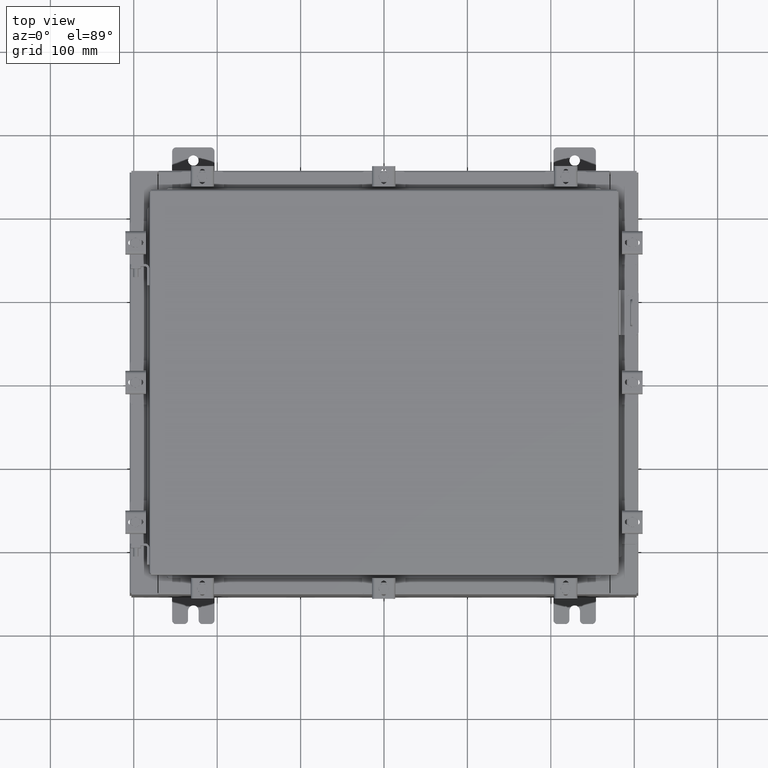
[diagram: clean part render]
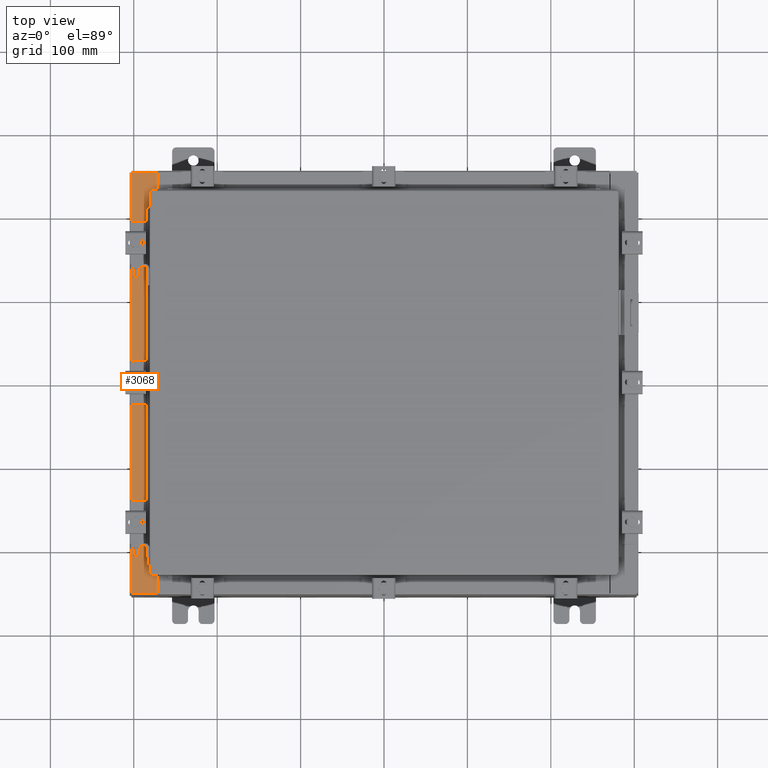
[diagram: same view with one face highlighted and labeled with its STEP entity id]
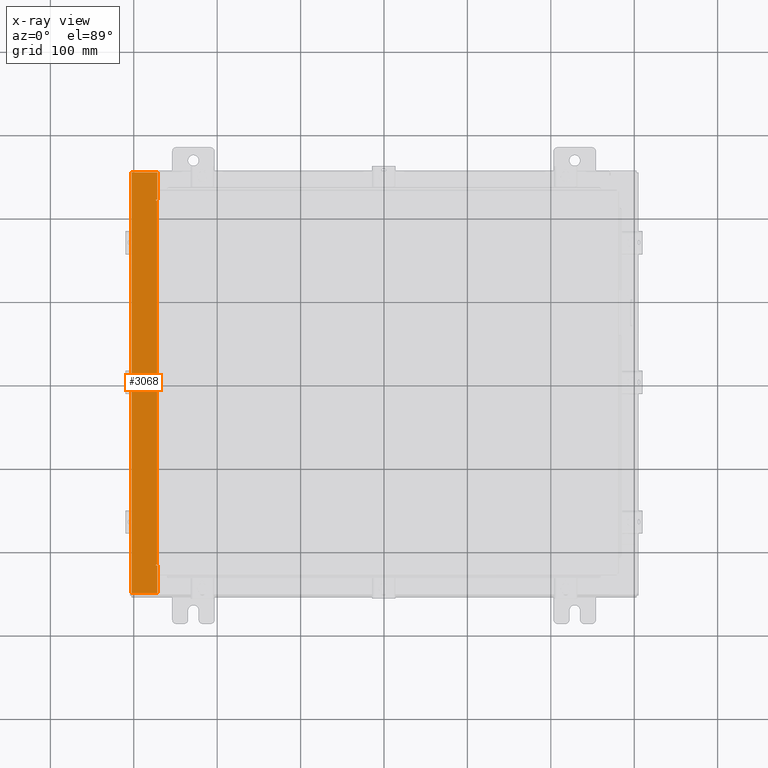
[diagram: x-ray of the same camera — body ghosted, the highlighted face saturated]
A machine part, top view. The second image highlights one B-rep face of the part: STEP entity #3068.
The next image is the same camera in x-ray: the body ghosted, the highlighted face saturated — about 0% of this face is hidden behind the body in this view.
In plain terms, the highlighted planar face has unit normal (0, 0, -1).
Its self-contained STEP definition (entity closure, byte-faithful):
#67 = VECTOR ( 'NONE', #7613, 39.37007874015748100 ) ;
#128 = FACE_OUTER_BOUND ( 'NONE', #518, .T. ) ;
#518 = EDGE_LOOP ( 'NONE', ( #7982, #21383, #4977, #5423, #11428, #2282, #2901, #12630, #13940, #11494, #6159, #19715 ) ) ;
#621 = VERTEX_POINT ( 'NONE', #16819 ) ;
#662 = VERTEX_POINT ( 'NONE', #20959 ) ;
#1033 = CARTESIAN_POINT ( 'NONE',  ( -5.679009539018275100E-014, 9.925299999999998200, 7.925300000000085300 ) ) ;
#1174 = LINE ( 'NONE', #15182, #10980 ) ;
#1199 = CARTESIAN_POINT ( 'NONE',  ( -11.91230000000003200, 9.925299999999996500, 7.925300000000000000 ) ) ;
#1524 = CARTESIAN_POINT ( 'NONE',  ( -10.75005000000003400, 8.593749999999996400, 7.925300000000008900 ) ) ;
#1571 = LINE ( 'NONE', #14172, #6718 ) ;
#1590 = EDGE_CURVE ( 'NONE', #16068, #11251, #6191, .T. ) ;
#1714 = EDGE_CURVE ( 'NONE', #7813, #11750, #4013, .T. ) ;
#2235 = LINE ( 'NONE', #21565, #67 ) ;
#2282 = ORIENTED_EDGE ( 'NONE', *, *, #7386, .T. ) ;
#2439 = CARTESIAN_POINT ( 'NONE',  ( -10.71270000000003500, 8.593749999999996400, 7.925300000000006200 ) ) ;
#2735 = VERTEX_POINT ( 'NONE', #20375 ) ;
#2901 = ORIENTED_EDGE ( 'NONE', *, *, #12534, .F. ) ;
#3068 = ADVANCED_FACE ( 'NONE', ( #128 ), #21600, .F. ) ;
#3080 = AXIS2_PLACEMENT_3D ( 'NONE', #18194, #21680, #11274 ) ;
#3231 = CARTESIAN_POINT ( 'NONE',  ( -11.91230000000003200, -9.925299999999998200, 7.925300000000000000 ) ) ;
#3723 = DIRECTION ( 'NONE',  ( -2.201926788038054900E-016, 1.000000000000000000, -1.570582056944474900E-030 ) ) ;
#4013 = LINE ( 'NONE', #18146, #21467 ) ;
#4386 = LINE ( 'NONE', #7282, #13687 ) ;
#4450 = LINE ( 'NONE', #1033, #13205 ) ;
#4648 = EDGE_CURVE ( 'NONE', #20850, #11251, #4450, .T. ) ;
#4729 = DIRECTION ( 'NONE',  ( 1.000000000000000000, -5.349571789159770400E-015, 7.132762385546359500E-015 ) ) ;
#4977 = ORIENTED_EDGE ( 'NONE', *, *, #4648, .T. ) ;
#5370 = CARTESIAN_POINT ( 'NONE',  ( -10.69970000000003200, 9.925299999999998200, 7.925300000000008900 ) ) ;
#5423 = ORIENTED_EDGE ( 'NONE', *, *, #1590, .F. ) ;
#6159 = ORIENTED_EDGE ( 'NONE', *, *, #1714, .F. ) ;
#6191 = LINE ( 'NONE', #12674, #10323 ) ;
#6713 = CIRCLE ( 'NONE', #22381, 0.01867499999999949400 ) ;
#6718 = VECTOR ( 'NONE', #3723, 39.37007874015748100 ) ;
#7088 = EDGE_CURVE ( 'NONE', #10466, #662, #19832, .T. ) ;
#7282 = CARTESIAN_POINT ( 'NONE',  ( -10.69970000000003000, -2.355995605397071600E-015, 7.925300000000008900 ) ) ;
#7386 = EDGE_CURVE ( 'NONE', #21941, #8316, #1571, .T. ) ;
#7516 = VECTOR ( 'NONE', #15832, 39.37007874015748100 ) ;
#7613 = DIRECTION ( 'NONE',  ( -0.0000000000000000000, -1.000000000000000000, -0.0000000000000000000 ) ) ;
#7813 = VERTEX_POINT ( 'NONE', #1524 ) ;
#7982 = ORIENTED_EDGE ( 'NONE', *, *, #19405, .F. ) ;
#8183 = CARTESIAN_POINT ( 'NONE',  ( -10.75005000000003400, 8.612424999999996400, 7.925300000000006200 ) ) ;
#8316 = VERTEX_POINT ( 'NONE', #12885 ) ;
#8470 = AXIS2_PLACEMENT_3D ( 'NONE', #8183, #20385, #9957 ) ;
#8547 = DIRECTION ( 'NONE',  ( -7.132762385546359500E-015, -0.0000000000000000000, 1.000000000000000000 ) ) ;
#8927 = CARTESIAN_POINT ( 'NONE',  ( -10.69970000000003200, 8.631099999999996400, 7.925300000000007100 ) ) ;
#9372 = CARTESIAN_POINT ( 'NONE',  ( -10.71270000000003500, -8.593750000000010700, 7.925300000000006200 ) ) ;
#9957 = DIRECTION ( 'NONE',  ( 1.000000000000000000, 0.0000000000000000000, 0.0000000000000000000 ) ) ;
#10323 = VECTOR ( 'NONE', #21336, 39.37007874015748100 ) ;
#10466 = VERTEX_POINT ( 'NONE', #9372 ) ;
#10588 = VECTOR ( 'NONE', #22027, 39.37007874015748100 ) ;
#10980 = VECTOR ( 'NONE', #4729, 39.37007874015748100 ) ;
#11251 = VERTEX_POINT ( 'NONE', #1199 ) ;
#11274 = DIRECTION ( 'NONE',  ( -1.000000000000000000, 0.0000000000000000000, -7.132762385546359500E-015 ) ) ;
#11428 = ORIENTED_EDGE ( 'NONE', *, *, #15582, .T. ) ;
#11494 = ORIENTED_EDGE ( 'NONE', *, *, #15732, .F. ) ;
#11750 = VERTEX_POINT ( 'NONE', #2439 ) ;
#11841 = LINE ( 'NONE', #21849, #20539 ) ;
#12534 = EDGE_CURVE ( 'NONE', #21861, #8316, #11841, .T. ) ;
#12630 = ORIENTED_EDGE ( 'NONE', *, *, #19245, .F. ) ;
#12674 = CARTESIAN_POINT ( 'NONE',  ( -11.91230000000003200, 9.925299999999998200, 7.925300000000000000 ) ) ;
#12885 = CARTESIAN_POINT ( 'NONE',  ( -10.69970000000002800, -8.631100000000012400, 7.925300000000008900 ) ) ;
#13205 = VECTOR ( 'NONE', #16625, 39.37007874015748100 ) ;
#13365 = CARTESIAN_POINT ( 'NONE',  ( -10.75005000000003400, -8.631100000000010700, 7.925300000000008900 ) ) ;
#13687 = VECTOR ( 'NONE', #14393, 39.37007874015748100 ) ;
#13844 = EDGE_CURVE ( 'NONE', #621, #20850, #4386, .T. ) ;
#13940 = ORIENTED_EDGE ( 'NONE', *, *, #7088, .F. ) ;
#14172 = CARTESIAN_POINT ( 'NONE',  ( -10.69970000000003000, -2.355995605397071600E-015, 7.925300000000008900 ) ) ;
#14393 = DIRECTION ( 'NONE',  ( -2.201926788038054900E-016, 1.000000000000000000, -1.570582056944474900E-030 ) ) ;
#15021 = EDGE_CURVE ( 'NONE', #2735, #7813, #20818, .T. ) ;
#15105 = CARTESIAN_POINT ( 'NONE',  ( -10.71270000000003500, -8.593750000000010700, 7.925300000000006200 ) ) ;
#15182 = CARTESIAN_POINT ( 'NONE',  ( -1.098862002691305700E-013, -9.925300000000064000, 7.925300000000085300 ) ) ;
#15582 = EDGE_CURVE ( 'NONE', #16068, #21941, #1174, .T. ) ;
#15732 = EDGE_CURVE ( 'NONE', #11750, #10466, #2235, .T. ) ;
#15832 = DIRECTION ( 'NONE',  ( -1.000000000000000000, 0.0000000000000000000, -2.170286390199955400E-014 ) ) ;
#16068 = VERTEX_POINT ( 'NONE', #3231 ) ;
#16625 = DIRECTION ( 'NONE',  ( -1.000000000000000000, 0.0000000000000000000, -7.132762385546359500E-015 ) ) ;
#16819 = CARTESIAN_POINT ( 'NONE',  ( -10.69970000000003200, 8.631099999999996400, 7.925300000000008900 ) ) ;
#18146 = CARTESIAN_POINT ( 'NONE',  ( -10.75005000000003400, 8.593749999999996400, 7.925300000000006200 ) ) ;
#18194 = CARTESIAN_POINT ( 'NONE',  ( -5.679009539018275100E-014, 0.0000000000000000000, 7.925300000000085300 ) ) ;
#18704 = CARTESIAN_POINT ( 'NONE',  ( -10.69970000000002800, -9.925300000000005300, 7.925300000000008900 ) ) ;
#19001 = CARTESIAN_POINT ( 'NONE',  ( -10.75005000000003400, -8.612425000000010700, 7.925300000000006200 ) ) ;
#19245 = EDGE_CURVE ( 'NONE', #662, #21861, #6713, .T. ) ;
#19405 = EDGE_CURVE ( 'NONE', #621, #2735, #21991, .T. ) ;
#19715 = ORIENTED_EDGE ( 'NONE', *, *, #15021, .F. ) ;
#19828 = DIRECTION ( 'NONE',  ( 1.000000000000000000, 0.0000000000000000000, 0.0000000000000000000 ) ) ;
#19832 = LINE ( 'NONE', #15105, #10588 ) ;
#20115 = DIRECTION ( 'NONE',  ( 1.000000000000000000, 0.0000000000000000000, 2.170286390199767400E-014 ) ) ;
#20375 = CARTESIAN_POINT ( 'NONE',  ( -10.75005000000003400, 8.631099999999996400, 7.925300000000008900 ) ) ;
#20385 = DIRECTION ( 'NONE',  ( -7.132762385546359500E-015, -0.0000000000000000000, 1.000000000000000000 ) ) ;
#20539 = VECTOR ( 'NONE', #20115, 39.37007874015748100 ) ;
#20728 = DIRECTION ( 'NONE',  ( 1.000000000000000000, 0.0000000000000000000, 0.0000000000000000000 ) ) ;
#20818 = CIRCLE ( 'NONE', #8470, 0.01867499999999949400 ) ;
#20850 = VERTEX_POINT ( 'NONE', #5370 ) ;
#20959 = CARTESIAN_POINT ( 'NONE',  ( -10.75005000000003400, -8.593750000000010700, 7.925300000000008900 ) ) ;
#21336 = DIRECTION ( 'NONE',  ( -0.0000000000000000000, 1.000000000000000000, -0.0000000000000000000 ) ) ;
#21383 = ORIENTED_EDGE ( 'NONE', *, *, #13844, .T. ) ;
#21467 = VECTOR ( 'NONE', #19828, 39.37007874015748100 ) ;
#21565 = CARTESIAN_POINT ( 'NONE',  ( -10.71270000000003500, 8.593749999999998200, 7.925300000000006200 ) ) ;
#21600 = PLANE ( 'NONE',  #3080 ) ;
#21680 = DIRECTION ( 'NONE',  ( 7.132762385546359500E-015, 0.0000000000000000000, -1.000000000000000000 ) ) ;
#21849 = CARTESIAN_POINT ( 'NONE',  ( -10.75005000000003400, -8.631100000000010700, 7.925300000000006200 ) ) ;
#21861 = VERTEX_POINT ( 'NONE', #13365 ) ;
#21941 = VERTEX_POINT ( 'NONE', #18704 ) ;
#21991 = LINE ( 'NONE', #8927, #7516 ) ;
#22027 = DIRECTION ( 'NONE',  ( -1.000000000000000000, 0.0000000000000000000, 0.0000000000000000000 ) ) ;
#22381 = AXIS2_PLACEMENT_3D ( 'NONE', #19001, #8547, #20728 ) ;